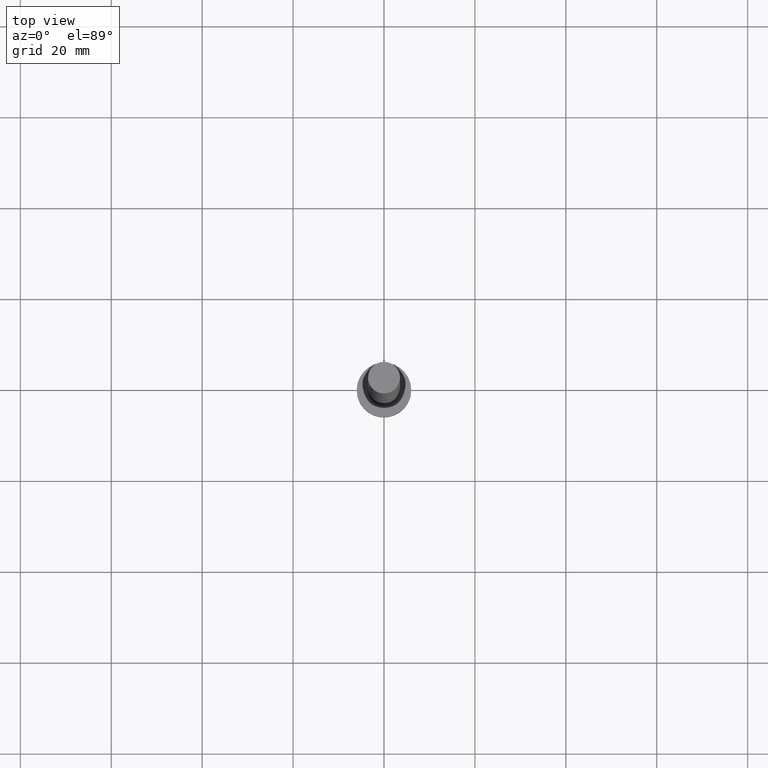
[diagram: clean part render]
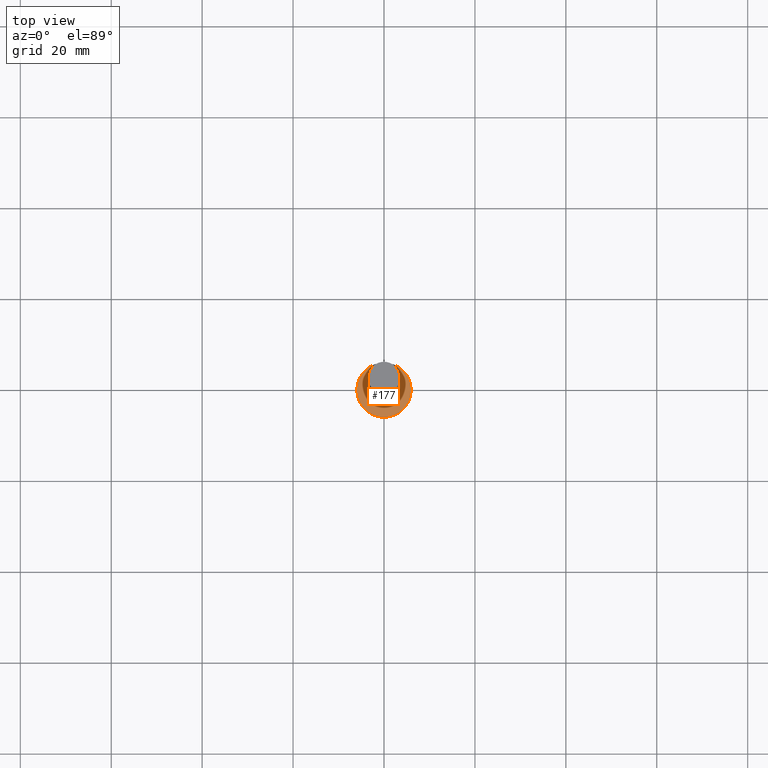
[diagram: same view with one face highlighted and labeled with its STEP entity id]
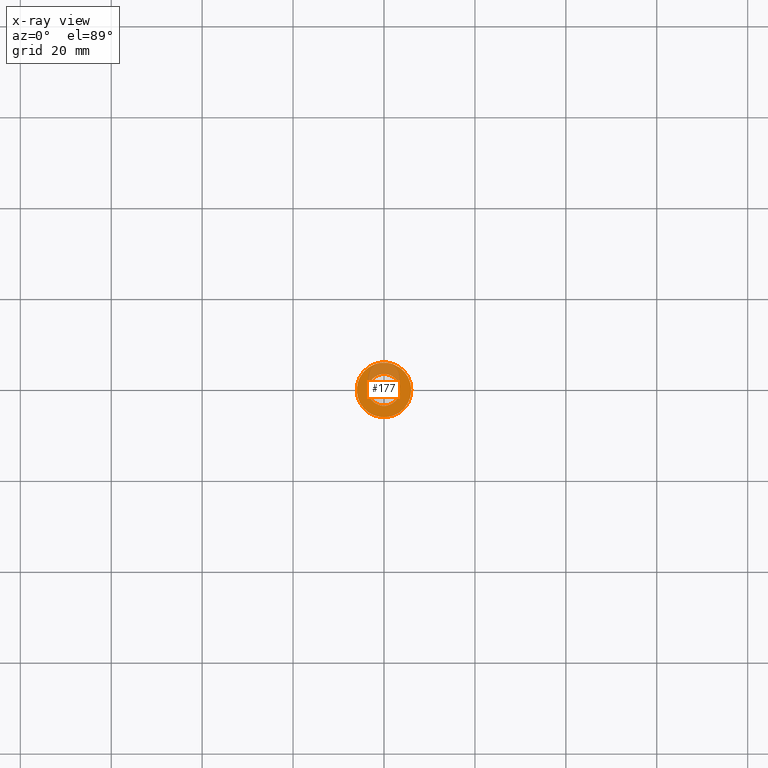
[diagram: x-ray of the same camera — body ghosted, the highlighted face saturated]
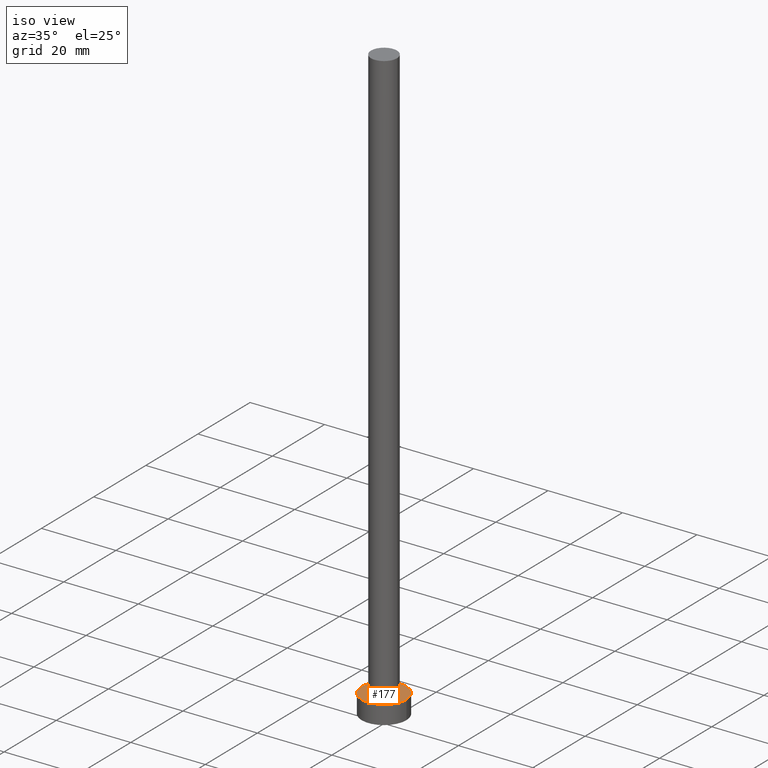
[diagram: same view with one face highlighted and labeled with its STEP entity id]
A machine part, top view. The second image highlights one B-rep face of the part: STEP entity #177.
The next image is the same camera in x-ray: the body ghosted, the highlighted face saturated — about 25% of this face is hidden behind the body in this view.
A second angle (iso view) of the same face is appended — the face is thin or edge-on in the first view.
In plain terms, the highlighted planar face has unit normal (0, 0, 1).
Its self-contained STEP definition (entity closure, byte-faithful):
#17 = AXIS2_PLACEMENT_3D ( 'NONE', #87, #164, #197 ) ;
#18 = AXIS2_PLACEMENT_3D ( 'NONE', #34, #97, #207 ) ;
#34 = CARTESIAN_POINT ( 'NONE',  ( 0.000000000000000000, 0.000000000000000000, 5.000000000000000000 ) ) ;
#37 = CARTESIAN_POINT ( 'NONE',  ( 0.000000000000000000, 0.000000000000000000, 5.000000000000000000 ) ) ;
#38 = CIRCLE ( 'NONE', #17, 6.000000000000000888 ) ;
#45 = EDGE_CURVE ( 'NONE', #137, #204, #38, .T. ) ;
#51 = CIRCLE ( 'NONE', #83, 6.000000000000000888 ) ;
#57 = EDGE_LOOP ( 'NONE', ( #169, #114 ) ) ;
#60 = CIRCLE ( 'NONE', #236, 3.500000000000000000 ) ;
#61 = CARTESIAN_POINT ( 'NONE',  ( 0.000000000000000000, 0.000000000000000000, 5.000000000000000000 ) ) ;
#72 = CARTESIAN_POINT ( 'NONE',  ( 3.500000000000000000, 4.286263797015736595E-16, 5.000000000000000000 ) ) ;
#77 = DIRECTION ( 'NONE',  ( 0.000000000000000000, 0.000000000000000000, 1.000000000000000000 ) ) ;
#78 = DIRECTION ( 'NONE',  ( 0.000000000000000000, 0.000000000000000000, 1.000000000000000000 ) ) ;
#83 = AXIS2_PLACEMENT_3D ( 'NONE', #203, #246, #127 ) ;
#87 = CARTESIAN_POINT ( 'NONE',  ( 0.000000000000000000, 0.000000000000000000, 5.000000000000000000 ) ) ;
#96 = CARTESIAN_POINT ( 'NONE',  ( -3.500000000000000000, 0.000000000000000000, 5.000000000000000000 ) ) ;
#97 = DIRECTION ( 'NONE',  ( 0.000000000000000000, 0.000000000000000000, 1.000000000000000000 ) ) ;
#100 = PLANE ( 'NONE',  #18 ) ;
#102 = AXIS2_PLACEMENT_3D ( 'NONE', #37, #78, #210 ) ;
#114 = ORIENTED_EDGE ( 'NONE', *, *, #45, .T. ) ;
#117 = EDGE_LOOP ( 'NONE', ( #186, #184 ) ) ;
#119 = CIRCLE ( 'NONE', #102, 3.500000000000000000 ) ;
#127 = DIRECTION ( 'NONE',  ( 1.000000000000000000, 0.000000000000000000, 0.000000000000000000 ) ) ;
#128 = CARTESIAN_POINT ( 'NONE',  ( 6.000000000000000888, 7.347880794884120722E-16, 5.000000000000000000 ) ) ;
#137 = VERTEX_POINT ( 'NONE', #128 ) ;
#145 = EDGE_CURVE ( 'NONE', #204, #137, #51, .T. ) ;
#156 = FACE_BOUND ( 'NONE', #117, .T. ) ;
#164 = DIRECTION ( 'NONE',  ( 0.000000000000000000, 0.000000000000000000, 1.000000000000000000 ) ) ;
#169 = ORIENTED_EDGE ( 'NONE', *, *, #145, .T. ) ;
#170 = VERTEX_POINT ( 'NONE', #72 ) ;
#172 = CARTESIAN_POINT ( 'NONE',  ( -6.000000000000000888, 0.000000000000000000, 5.000000000000000000 ) ) ;
#177 = ADVANCED_FACE ( 'NONE', ( #156, #191 ), #100, .T. ) ;
#184 = ORIENTED_EDGE ( 'NONE', *, *, #237, .F. ) ;
#186 = ORIENTED_EDGE ( 'NONE', *, *, #193, .F. ) ;
#191 = FACE_OUTER_BOUND ( 'NONE', #57, .T. ) ;
#193 = EDGE_CURVE ( 'NONE', #243, #170, #60, .T. ) ;
#197 = DIRECTION ( 'NONE',  ( 1.000000000000000000, 0.000000000000000000, 0.000000000000000000 ) ) ;
#203 = CARTESIAN_POINT ( 'NONE',  ( 0.000000000000000000, 0.000000000000000000, 5.000000000000000000 ) ) ;
#204 = VERTEX_POINT ( 'NONE', #172 ) ;
#207 = DIRECTION ( 'NONE',  ( 1.000000000000000000, 0.000000000000000000, -0.000000000000000000 ) ) ;
#210 = DIRECTION ( 'NONE',  ( 1.000000000000000000, 0.000000000000000000, 0.000000000000000000 ) ) ;
#229 = DIRECTION ( 'NONE',  ( 1.000000000000000000, 0.000000000000000000, 0.000000000000000000 ) ) ;
#236 = AXIS2_PLACEMENT_3D ( 'NONE', #61, #77, #229 ) ;
#237 = EDGE_CURVE ( 'NONE', #170, #243, #119, .T. ) ;
#243 = VERTEX_POINT ( 'NONE', #96 ) ;
#246 = DIRECTION ( 'NONE',  ( 0.000000000000000000, 0.000000000000000000, 1.000000000000000000 ) ) ;